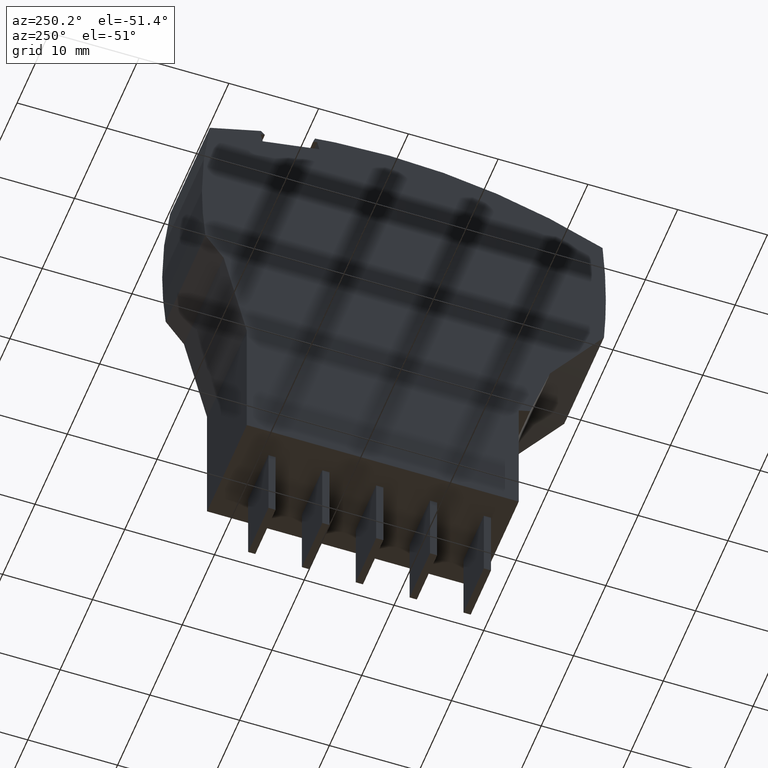
[diagram: clean part render]
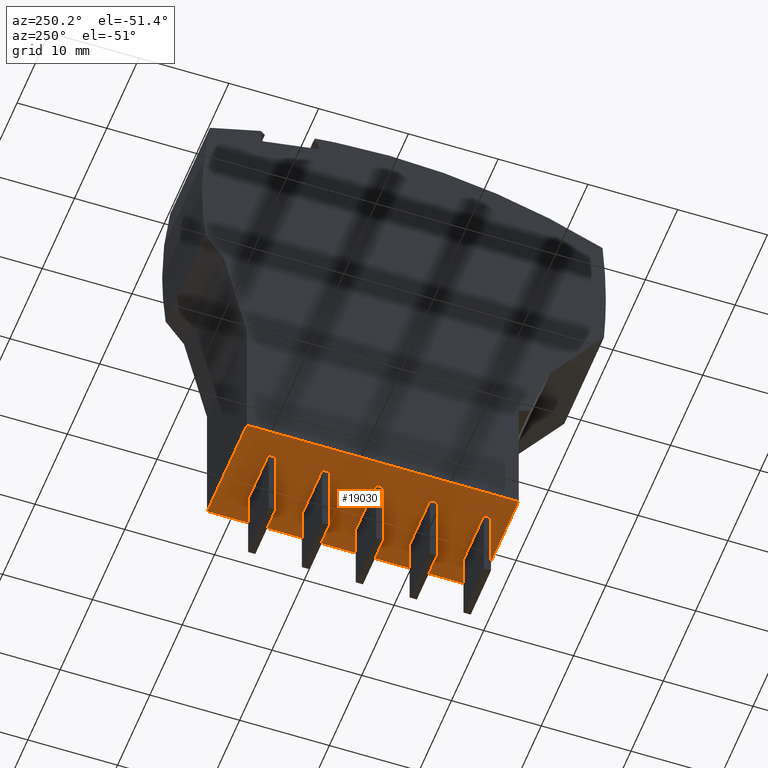
[diagram: same view with one face highlighted and labeled with its STEP entity id]
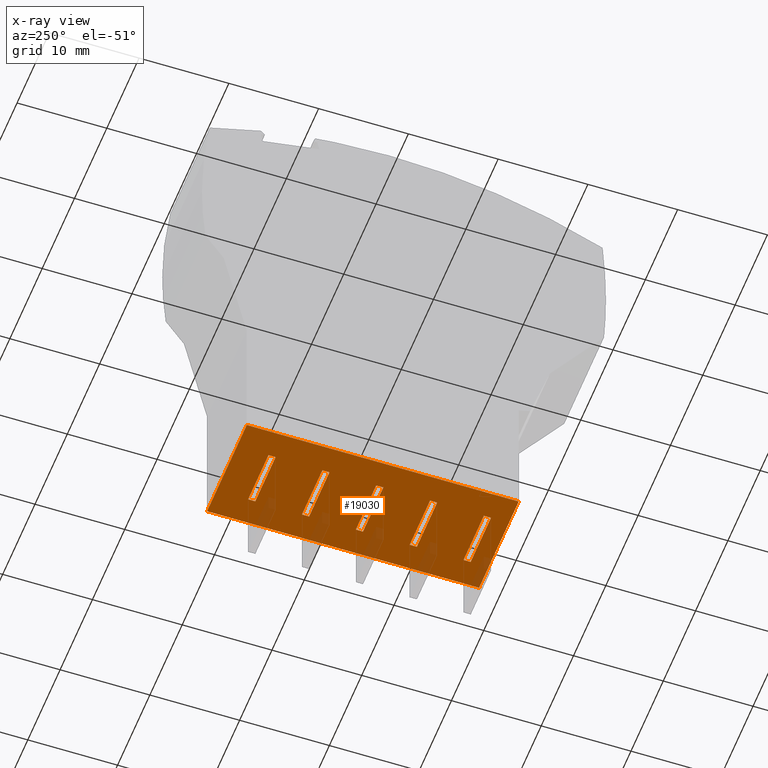
[diagram: x-ray of the same camera — body ghosted, the highlighted face saturated]
A machine part, auxiliary view. The second image highlights one B-rep face of the part: STEP entity #19030.
The next image is the same camera in x-ray: the body ghosted, the highlighted face saturated — about 7% of this face is hidden behind the body in this view.
In plain terms, the highlighted planar face has unit normal (-0, 0, -1).
Its self-contained STEP definition (entity closure, byte-faithful):
#1080=CARTESIAN_POINT('',(14.5821672261189,-10.4000000000194,
53.6700000001206));
#1090=VERTEX_POINT('',#1080);
#1120=CARTESIAN_POINT('',(-5.08695122850913,-10.3999999999975,
53.6700000001206));
#1130=DIRECTION('',(-1.,1.11123366772477E-12,0.));
#1140=VECTOR('',#1130,1.);
#1150=LINE('',#1120,#1140);
#1160=CARTESIAN_POINT('',(-15.7178327738811,-10.3999999999857,
53.6700000001206));
#1170=VERTEX_POINT('',#1160);
#1180=EDGE_CURVE('',#1090,#1170,#1150,.T.);
#3610=CARTESIAN_POINT('',(-15.7178327738811,-10.3999999999857,
41.3700000001206));
#3620=VERTEX_POINT('',#3610);
#3650=CARTESIAN_POINT('',(-5.08695122850913,-10.3999999999975,
41.3700000001206));
#3660=DIRECTION('',(-1.,1.11123366772477E-12,0.));
#3670=VECTOR('',#3660,1.);
#3680=LINE('',#3650,#3670);
#3690=CARTESIAN_POINT('',(14.5821672261189,-10.4000000000194,
41.3700000001206));
#3700=VERTEX_POINT('',#3690);
#3710=EDGE_CURVE('',#3700,#3620,#3680,.T.);
#5420=CARTESIAN_POINT('',(11.7821672261189,-10.4000000000163,
44.3450000001206));
#5430=VERTEX_POINT('',#5420);
#5600=CARTESIAN_POINT('',(12.5821672261189,-10.4000000000172,
44.3450000001206));
#5610=VERTEX_POINT('',#5600);
#5640=CARTESIAN_POINT('',(0.182167226118875,-10.4000000000034,
44.3450000001206));
#5650=DIRECTION('',(1.,-1.11123366772477E-12,0.));
#5660=VECTOR('',#5650,1.);
#5670=LINE('',#5640,#5660);
#5680=EDGE_CURVE('',#5430,#5610,#5670,.T.);
#6950=CARTESIAN_POINT('',(-15.7178327738811,-10.3999999999857,
41.4450000001206));
#6960=DIRECTION('',(0.,0.,1.));
#6970=VECTOR('',#6960,1.);
#6980=LINE('',#6950,#6970);
#6990=EDGE_CURVE('',#3620,#1170,#6980,.T.);
#7650=CARTESIAN_POINT('',(14.5821672261189,-10.4000000000194,
41.4450000001206));
#7660=DIRECTION('',(0.,0.,1.));
#7670=VECTOR('',#7660,1.);
#7680=LINE('',#7650,#7670);
#7690=EDGE_CURVE('',#3700,#1090,#7680,.T.);
#8840=CARTESIAN_POINT('',(12.5821672261189,-10.4000000000172,
50.6450000001206));
#8850=VERTEX_POINT('',#8840);
#8880=CARTESIAN_POINT('',(12.5821672261189,-10.4000000000172,
41.4450000001206));
#8890=DIRECTION('',(0.,0.,1.));
#8900=VECTOR('',#8890,1.);
#8910=LINE('',#8880,#8900);
#8920=EDGE_CURVE('',#5610,#8850,#8910,.T.);
#9610=CARTESIAN_POINT('',(0.582167226118873,-10.4000000000038,
50.6450000001206));
#9620=VERTEX_POINT('',#9610);
#9790=CARTESIAN_POINT('',(-0.217832773881128,-10.400000000003,
50.6450000001206));
#9800=VERTEX_POINT('',#9790);
#9830=CARTESIAN_POINT('',(0.182167226118875,-10.4000000000034,
50.6450000001206));
#9840=DIRECTION('',(1.,-1.11123366772477E-12,0.));
#9850=VECTOR('',#9840,1.);
#9860=LINE('',#9830,#9850);
#9870=EDGE_CURVE('',#9800,#9620,#9860,.T.);
#10170=CARTESIAN_POINT('',(-0.217832773881128,-10.400000000003,
44.3450000001206));
#10180=VERTEX_POINT('',#10170);
#10210=CARTESIAN_POINT('',(-0.217832773881128,-10.400000000003,
41.4450000001206));
#10220=DIRECTION('',(0.,0.,-1.));
#10230=VECTOR('',#10220,1.);
#10240=LINE('',#10210,#10230);
#10250=EDGE_CURVE('',#9800,#10180,#10240,.T.);
#10750=CARTESIAN_POINT('',(0.582167226118873,-10.4000000000038,
41.4450000001206));
#10760=DIRECTION('',(0.,0.,1.));
#10770=VECTOR('',#10760,1.);
#10780=LINE('',#10750,#10770);
#10790=CARTESIAN_POINT('',(0.582167226118873,-10.4000000000038,
44.3450000001206));
#10800=VERTEX_POINT('',#10790);
#10810=EDGE_CURVE('',#10800,#9620,#10780,.T.);
#11230=CARTESIAN_POINT('',(0.182167226118875,-10.4000000000034,
44.3450000001206));
#11240=DIRECTION('',(1.,-1.11123366772477E-12,0.));
#11250=VECTOR('',#11240,1.);
#11260=LINE('',#11230,#11250);
#11270=EDGE_CURVE('',#10180,#10800,#11260,.T.);
#11510=CARTESIAN_POINT('',(-12.2178327738811,-10.3999999999896,
44.3450000001206));
#11520=VERTEX_POINT('',#11510);
#11690=CARTESIAN_POINT('',(-11.4178327738811,-10.3999999999905,
44.3450000001206));
#11700=VERTEX_POINT('',#11690);
#11730=CARTESIAN_POINT('',(0.182167226118875,-10.4000000000034,
44.3450000001206));
#11740=DIRECTION('',(1.,-1.11123366772477E-12,0.));
#11750=VECTOR('',#11740,1.);
#11760=LINE('',#11730,#11750);
#11770=EDGE_CURVE('',#11520,#11700,#11760,.T.);
#12070=CARTESIAN_POINT('',(-11.4178327738811,-10.3999999999905,
50.6450000001206));
#12080=VERTEX_POINT('',#12070);
#12110=CARTESIAN_POINT('',(-11.4178327738811,-10.3999999999905,
41.4450000001206));
#12120=DIRECTION('',(0.,0.,1.));
#12130=VECTOR('',#12120,1.);
#12140=LINE('',#12110,#12130);
#12150=EDGE_CURVE('',#11700,#12080,#12140,.T.);
#12690=CARTESIAN_POINT('',(-12.2178327738811,-10.3999999999896,
50.6450000001206));
#12700=VERTEX_POINT('',#12690);
#12730=CARTESIAN_POINT('',(0.182167226118875,-10.4000000000034,
50.6450000001206));
#12740=DIRECTION('',(1.,-1.11123366772477E-12,0.));
#12750=VECTOR('',#12740,1.);
#12760=LINE('',#12730,#12750);
#12770=EDGE_CURVE('',#12700,#12080,#12760,.T.);
#12940=CARTESIAN_POINT('',(-12.2178327738811,-10.3999999999896,
41.4450000001206));
#12950=DIRECTION('',(0.,0.,-1.));
#12960=VECTOR('',#12950,1.);
#12970=LINE('',#12940,#12960);
#12980=EDGE_CURVE('',#12700,#11520,#12970,.T.);
#13240=CARTESIAN_POINT('',(-5.41783277388113,-10.3999999999972,
50.6450000001206));
#13250=VERTEX_POINT('',#13240);
#13400=CARTESIAN_POINT('',(-6.21783277388113,-10.3999999999963,
50.6450000001206));
#13410=VERTEX_POINT('',#13400);
#13440=CARTESIAN_POINT('',(0.182167226118875,-10.4000000000034,
50.6450000001206));
#13450=DIRECTION('',(1.,-1.11123366772477E-12,0.));
#13460=VECTOR('',#13450,1.);
#13470=LINE('',#13440,#13460);
#13480=EDGE_CURVE('',#13410,#13250,#13470,.T.);
#13650=CARTESIAN_POINT('',(-6.21783277388113,-10.3999999999963,
41.4450000001206));
#13660=DIRECTION('',(0.,0.,-1.));
#13670=VECTOR('',#13660,1.);
#13680=LINE('',#13650,#13670);
#13690=CARTESIAN_POINT('',(-6.21783277388113,-10.3999999999963,
44.3450000001206));
#13700=VERTEX_POINT('',#13690);
#13710=EDGE_CURVE('',#13410,#13700,#13680,.T.);
#14400=CARTESIAN_POINT('',(-5.41783277388113,-10.3999999999972,
44.3450000001206));
#14410=VERTEX_POINT('',#14400);
#14440=CARTESIAN_POINT('',(0.182167226118875,-10.4000000000034,
44.3450000001206));
#14450=DIRECTION('',(1.,-1.11123366772477E-12,0.));
#14460=VECTOR('',#14450,1.);
#14470=LINE('',#14440,#14460);
#14480=EDGE_CURVE('',#13700,#14410,#14470,.T.);
#14680=CARTESIAN_POINT('',(-5.41783277388113,-10.3999999999972,
41.4450000001206));
#14690=DIRECTION('',(0.,0.,1.));
#14700=VECTOR('',#14690,1.);
#14710=LINE('',#14680,#14700);
#14720=EDGE_CURVE('',#14410,#13250,#14710,.T.);
#14890=CARTESIAN_POINT('',(5.78216722611887,-10.4000000000096,
41.4450000001206));
#14900=DIRECTION('',(0.,0.,-1.));
#14910=VECTOR('',#14900,1.);
#14920=LINE('',#14890,#14910);
#14930=CARTESIAN_POINT('',(5.78216722611887,-10.4000000000096,
50.6450000001206));
#14940=VERTEX_POINT('',#14930);
#14950=CARTESIAN_POINT('',(5.78216722611887,-10.4000000000096,
44.3450000001206));
#14960=VERTEX_POINT('',#14950);
#14970=EDGE_CURVE('',#14940,#14960,#14920,.T.);
#15420=CARTESIAN_POINT('',(6.58216722611887,-10.4000000000105,
44.3450000001206));
#15430=VERTEX_POINT('',#15420);
#15580=CARTESIAN_POINT('',(6.58216722611887,-10.4000000000105,
50.6450000001206));
#15590=VERTEX_POINT('',#15580);
#15620=CARTESIAN_POINT('',(6.58216722611887,-10.4000000000105,
41.4450000001206));
#15630=DIRECTION('',(0.,0.,1.));
#15640=VECTOR('',#15630,1.);
#15650=LINE('',#15620,#15640);
#15660=EDGE_CURVE('',#15430,#15590,#15650,.T.);
#16150=CARTESIAN_POINT('',(0.182167226118875,-10.4000000000034,
50.6450000001206));
#16160=DIRECTION('',(1.,-1.11123366772477E-12,0.));
#16170=VECTOR('',#16160,1.);
#16180=LINE('',#16150,#16170);
#16190=EDGE_CURVE('',#14940,#15590,#16180,.T.);
#16390=CARTESIAN_POINT('',(0.182167226118875,-10.4000000000034,
44.3450000001206));
#16400=DIRECTION('',(1.,-1.11123366772477E-12,0.));
#16410=VECTOR('',#16400,1.);
#16420=LINE('',#16390,#16410);
#16430=EDGE_CURVE('',#14960,#15430,#16420,.T.);
#16730=CARTESIAN_POINT('',(11.7821672261189,-10.4000000000163,
50.6450000001206));
#16740=VERTEX_POINT('',#16730);
#16770=CARTESIAN_POINT('',(0.182167226118875,-10.4000000000034,
50.6450000001206));
#16780=DIRECTION('',(1.,-1.11123366772477E-12,0.));
#16790=VECTOR('',#16780,1.);
#16800=LINE('',#16770,#16790);
#16810=EDGE_CURVE('',#16740,#8850,#16800,.T.);
#16980=CARTESIAN_POINT('',(11.7821672261189,-10.4000000000163,
41.4450000001206));
#16990=DIRECTION('',(0.,0.,-1.));
#17000=VECTOR('',#16990,1.);
#17010=LINE('',#16980,#17000);
#17020=EDGE_CURVE('',#16740,#5430,#17010,.T.);
#18620=CARTESIAN_POINT('',(14.5821672261189,-10.4000000000194,
41.4450000001206));
#18630=DIRECTION('',(-1.11123366772477E-12,-1.,0.));
#18640=DIRECTION('',(1.,-1.11123366772477E-12,0.));
#18650=AXIS2_PLACEMENT_3D('',#18620,#18630,#18640);
#18660=PLANE('',#18650);
#18670=ORIENTED_EDGE('',*,*,#15660,.F.);
#18680=ORIENTED_EDGE('',*,*,#16190,.T.);
#18690=ORIENTED_EDGE('',*,*,#14970,.F.);
#18700=ORIENTED_EDGE('',*,*,#16430,.F.);
#18710=EDGE_LOOP('',(#18700,#18690,#18680,#18670));
#18720=FACE_BOUND('',#18710,.T.);
#18730=ORIENTED_EDGE('',*,*,#17020,.F.);
#18740=ORIENTED_EDGE('',*,*,#5680,.F.);
#18750=ORIENTED_EDGE('',*,*,#8920,.F.);
#18760=ORIENTED_EDGE('',*,*,#16810,.T.);
#18770=EDGE_LOOP('',(#18760,#18750,#18740,#18730));
#18780=FACE_BOUND('',#18770,.T.);
#18790=ORIENTED_EDGE('',*,*,#11270,.F.);
#18800=ORIENTED_EDGE('',*,*,#10810,.F.);
#18810=ORIENTED_EDGE('',*,*,#9870,.T.);
#18820=ORIENTED_EDGE('',*,*,#10250,.F.);
#18830=EDGE_LOOP('',(#18820,#18810,#18800,#18790));
#18840=FACE_BOUND('',#18830,.T.);
#18850=ORIENTED_EDGE('',*,*,#11770,.F.);
#18860=ORIENTED_EDGE('',*,*,#12150,.F.);
#18870=ORIENTED_EDGE('',*,*,#12770,.T.);
#18880=ORIENTED_EDGE('',*,*,#12980,.F.);
#18890=EDGE_LOOP('',(#18880,#18870,#18860,#18850));
#18900=FACE_BOUND('',#18890,.T.);
#18910=ORIENTED_EDGE('',*,*,#13710,.F.);
#18920=ORIENTED_EDGE('',*,*,#14480,.F.);
#18930=ORIENTED_EDGE('',*,*,#14720,.F.);
#18940=ORIENTED_EDGE('',*,*,#13480,.T.);
#18950=EDGE_LOOP('',(#18940,#18930,#18920,#18910));
#18960=FACE_BOUND('',#18950,.T.);
#18970=ORIENTED_EDGE('',*,*,#6990,.F.);
#18980=ORIENTED_EDGE('',*,*,#1180,.T.);
#18990=ORIENTED_EDGE('',*,*,#7690,.T.);
#19000=ORIENTED_EDGE('',*,*,#3710,.F.);
#19010=EDGE_LOOP('',(#19000,#18990,#18980,#18970));
#19020=FACE_OUTER_BOUND('',#19010,.T.);
#19030=ADVANCED_FACE('',(#18720,#18780,#18840,#18900,#18960,#19020),
#18660,.T.);